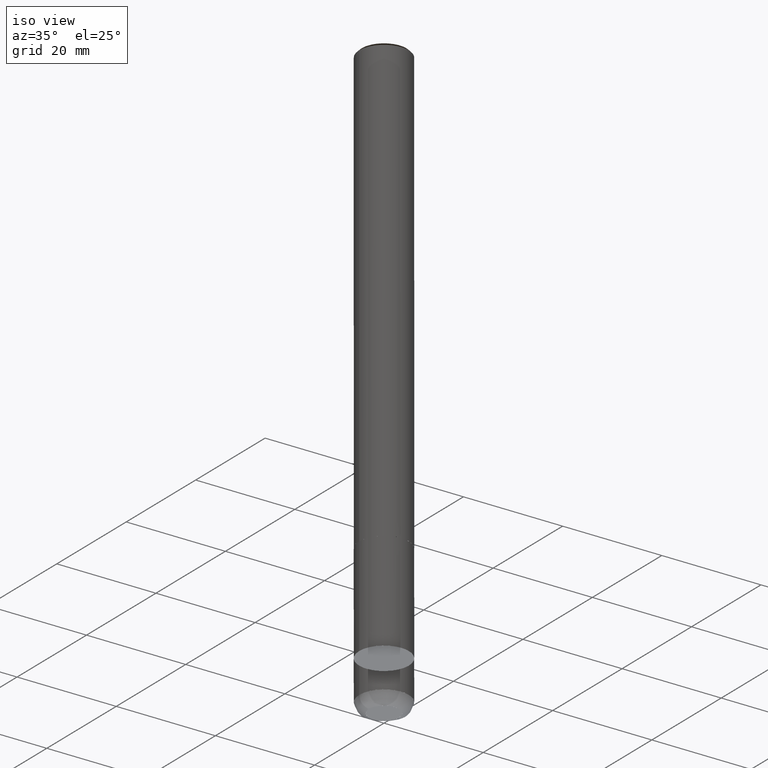
[diagram: clean part render]
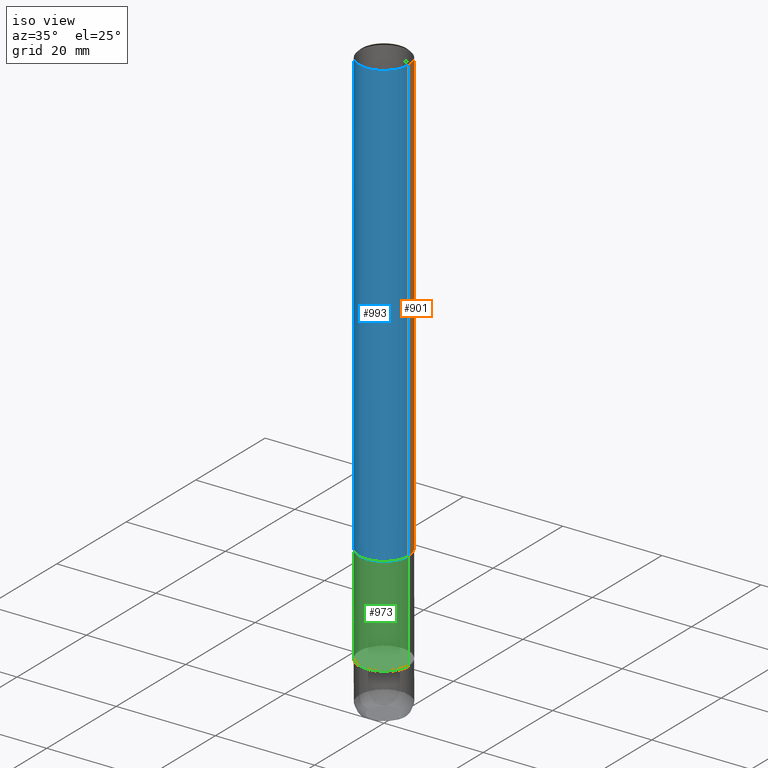
[diagram: same view with three faces highlighted in distinct colors, each labeled with its STEP entity id]
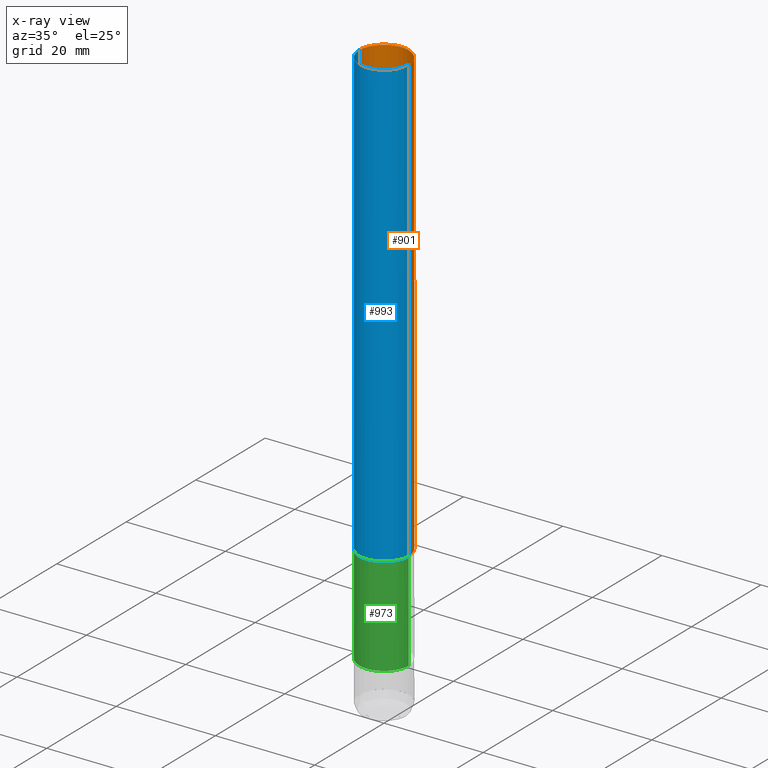
[diagram: x-ray of the same camera — body ghosted, the three highlighted faces saturated]
A machine part, iso view with three faces highlighted in distinct colors.
The next image is the same camera in x-ray (body ghosted, the three faces saturated) — at least one of them is partly hidden behind the body in this view.
Their STEP definitions:

[orange] entity #901 — the highlighted face is a freeform B-spline surface patch.
#666=CARTESIAN_POINT('',(5.0,0.0,0.0));
#667=CARTESIAN_POINT('',(5.0,5.0,0.0));
#668=CARTESIAN_POINT('',(0.0,5.0,0.0));
#669=CARTESIAN_POINT('',(-5.0,5.0,0.0));
#670=CARTESIAN_POINT('',(-5.0,0.0,0.0));
#671=CARTESIAN_POINT('',(5.0,0.0,89.5));
#672=CARTESIAN_POINT('',(5.0,5.0,89.5));
#673=CARTESIAN_POINT('',(0.0,5.0,89.5));
#674=CARTESIAN_POINT('',(-5.0,5.0,89.5));
#675=CARTESIAN_POINT('',(-5.0,0.0,89.5));
#882=(
BOUNDED_SURFACE()
B_SPLINE_SURFACE(1,2,(
(#666,#667,#668,#669,#670),
(#671,#672,#673,#674,#675)
), .UNSPECIFIED.,.F.,.F.,.F.)
B_SPLINE_SURFACE_WITH_KNOTS((2,2),(3,2,3),(
0.0,1.0),(
0.0,0.5,1.0), .UNSPECIFIED.)
GEOMETRIC_REPRESENTATION_ITEM()
RATIONAL_B_SPLINE_SURFACE(((1.0,0.707106781187,1.0,0.707106781187,1.0),
(1.0,0.707106781187,1.0,0.707106781187,1.0)
))
REPRESENTATION_ITEM('')
SURFACE()
);
#883=(
BOUNDED_CURVE()
B_SPLINE_CURVE(2,(#671,#672,#673,#674,#675),.UNSPECIFIED.,.F.,.F.)
B_SPLINE_CURVE_WITH_KNOTS((3,2,3),
(0.0,0.5,1.0),.UNSPECIFIED.)
CURVE()
GEOMETRIC_REPRESENTATION_ITEM()
RATIONAL_B_SPLINE_CURVE((1.0,0.707106781187,1.0,0.707106781187,1.0))
REPRESENTATION_ITEM('')
);
#884=(
BOUNDED_CURVE()
B_SPLINE_CURVE(1,(#675,#670),.UNSPECIFIED.,.F.,.F.)
B_SPLINE_CURVE_WITH_KNOTS((2,2),
(0.0,1.0),.UNSPECIFIED.)
CURVE()
GEOMETRIC_REPRESENTATION_ITEM()
RATIONAL_B_SPLINE_CURVE((1.0,1.0))
REPRESENTATION_ITEM('')
);
#885=(
BOUNDED_CURVE()
B_SPLINE_CURVE(2,(#670,#669,#668,#667,#666),.UNSPECIFIED.,.F.,.F.)
B_SPLINE_CURVE_WITH_KNOTS((3,2,3),
(0.0,0.5,1.0),.UNSPECIFIED.)
CURVE()
GEOMETRIC_REPRESENTATION_ITEM()
RATIONAL_B_SPLINE_CURVE((1.0,0.707106781187,1.0,0.707106781187,1.0))
REPRESENTATION_ITEM('')
);
#886=(
BOUNDED_CURVE()
B_SPLINE_CURVE(1,(#666,#671),.UNSPECIFIED.,.F.,.F.)
B_SPLINE_CURVE_WITH_KNOTS((2,2),
(0.0,1.0),.UNSPECIFIED.)
CURVE()
GEOMETRIC_REPRESENTATION_ITEM()
RATIONAL_B_SPLINE_CURVE((1.0,1.0))
REPRESENTATION_ITEM('')
);
#887=VERTEX_POINT('',#666);
#888=VERTEX_POINT('',#670);
#889=VERTEX_POINT('',#671);
#890=VERTEX_POINT('',#675);
#891=EDGE_CURVE('',#889,#890,#883,.T.);
#892=EDGE_CURVE('',#890,#888,#884,.T.);
#893=EDGE_CURVE('',#888,#887,#885,.T.);
#894=EDGE_CURVE('',#887,#889,#886,.T.);
#895=ORIENTED_EDGE('',*,*,#891,.T.);
#896=ORIENTED_EDGE('',*,*,#892,.T.);
#897=ORIENTED_EDGE('',*,*,#893,.T.);
#898=ORIENTED_EDGE('',*,*,#894,.T.);
#899=EDGE_LOOP('',(#895,#896,#897,#898));
#900=FACE_OUTER_BOUND('',#899,.T.);
#901=ADVANCED_FACE('',(#900),#882,.T.);

[blue] entity #993 — the highlighted face is a freeform B-spline surface patch.
#666=CARTESIAN_POINT('',(5.0,0.0,0.0));
#670=CARTESIAN_POINT('',(-5.0,0.0,0.0));
#671=CARTESIAN_POINT('',(5.0,0.0,89.5));
#675=CARTESIAN_POINT('',(-5.0,0.0,89.5));
#682=CARTESIAN_POINT('',(-5.0,-5.0,0.0));
#683=CARTESIAN_POINT('',(0.0,-5.0,0.0));
#684=CARTESIAN_POINT('',(5.0,-5.0,0.0));
#685=CARTESIAN_POINT('',(-5.0,-5.0,89.5));
#686=CARTESIAN_POINT('',(0.0,-5.0,89.5));
#687=CARTESIAN_POINT('',(5.0,-5.0,89.5));
#974=(
BOUNDED_SURFACE()
B_SPLINE_SURFACE(1,2,(
(#670,#682,#683,#684,#666),
(#675,#685,#686,#687,#671)
), .UNSPECIFIED.,.F.,.F.,.F.)
B_SPLINE_SURFACE_WITH_KNOTS((2,2),(3,2,3),(
0.0,1.0),(
0.0,0.5,1.0), .UNSPECIFIED.)
GEOMETRIC_REPRESENTATION_ITEM()
RATIONAL_B_SPLINE_SURFACE(((1.0,0.707106781187,1.0,0.707106781187,1.0),
(1.0,0.707106781187,1.0,0.707106781187,1.0)
))
REPRESENTATION_ITEM('')
SURFACE()
);
#975=(
BOUNDED_CURVE()
B_SPLINE_CURVE(1,(#675,#670),.UNSPECIFIED.,.F.,.F.)
B_SPLINE_CURVE_WITH_KNOTS((2,2),
(0.0,1.0),.UNSPECIFIED.)
CURVE()
GEOMETRIC_REPRESENTATION_ITEM()
RATIONAL_B_SPLINE_CURVE((1.0,1.0))
REPRESENTATION_ITEM('')
);
#976=(
BOUNDED_CURVE()
B_SPLINE_CURVE(2,(#670,#682,#683,#684,#666),.UNSPECIFIED.,.F.,.F.)
B_SPLINE_CURVE_WITH_KNOTS((3,2,3),
(0.0,0.5,1.0),.UNSPECIFIED.)
CURVE()
GEOMETRIC_REPRESENTATION_ITEM()
RATIONAL_B_SPLINE_CURVE((1.0,0.707106781187,1.0,0.707106781187,1.0))
REPRESENTATION_ITEM('')
);
#977=(
BOUNDED_CURVE()
B_SPLINE_CURVE(1,(#666,#671),.UNSPECIFIED.,.F.,.F.)
B_SPLINE_CURVE_WITH_KNOTS((2,2),
(0.0,1.0),.UNSPECIFIED.)
CURVE()
GEOMETRIC_REPRESENTATION_ITEM()
RATIONAL_B_SPLINE_CURVE((1.0,1.0))
REPRESENTATION_ITEM('')
);
#978=(
BOUNDED_CURVE()
B_SPLINE_CURVE(2,(#671,#687,#686,#685,#675),.UNSPECIFIED.,.F.,.F.)
B_SPLINE_CURVE_WITH_KNOTS((3,2,3),
(0.0,0.5,1.0),.UNSPECIFIED.)
CURVE()
GEOMETRIC_REPRESENTATION_ITEM()
RATIONAL_B_SPLINE_CURVE((1.0,0.707106781187,1.0,0.707106781187,1.0))
REPRESENTATION_ITEM('')
);
#979=VERTEX_POINT('',#666);
#980=VERTEX_POINT('',#670);
#981=VERTEX_POINT('',#671);
#982=VERTEX_POINT('',#675);
#983=EDGE_CURVE('',#982,#980,#975,.T.);
#984=EDGE_CURVE('',#980,#979,#976,.T.);
#985=EDGE_CURVE('',#979,#981,#977,.T.);
#986=EDGE_CURVE('',#981,#982,#978,.T.);
#987=ORIENTED_EDGE('',*,*,#983,.T.);
#988=ORIENTED_EDGE('',*,*,#984,.T.);
#989=ORIENTED_EDGE('',*,*,#985,.T.);
#990=ORIENTED_EDGE('',*,*,#986,.T.);
#991=EDGE_LOOP('',(#987,#988,#989,#990));
#992=FACE_OUTER_BOUND('',#991,.T.);
#993=ADVANCED_FACE('',(#992),#974,.T.);

[green] entity #973 — the highlighted face is a freeform B-spline surface patch.
#648=CARTESIAN_POINT('',(5.0,0.0,-20.0));
#652=CARTESIAN_POINT('',(-5.0,0.0,-20.0));
#663=CARTESIAN_POINT('',(-5.0,-5.0,-20.0));
#664=CARTESIAN_POINT('',(0.0,-5.0,-20.0));
#665=CARTESIAN_POINT('',(5.0,-5.0,-20.0));
#666=CARTESIAN_POINT('',(5.0,0.0,0.0));
#670=CARTESIAN_POINT('',(-5.0,0.0,0.0));
#682=CARTESIAN_POINT('',(-5.0,-5.0,0.0));
#683=CARTESIAN_POINT('',(0.0,-5.0,0.0));
#684=CARTESIAN_POINT('',(5.0,-5.0,0.0));
#954=(
BOUNDED_SURFACE()
B_SPLINE_SURFACE(1,2,(
(#652,#663,#664,#665,#648),
(#670,#682,#683,#684,#666)
), .UNSPECIFIED.,.F.,.F.,.F.)
B_SPLINE_SURFACE_WITH_KNOTS((2,2),(3,2,3),(
0.0,1.0),(
0.0,0.5,1.0), .UNSPECIFIED.)
GEOMETRIC_REPRESENTATION_ITEM()
RATIONAL_B_SPLINE_SURFACE(((1.0,0.707106781187,1.0,0.707106781187,1.0),
(1.0,0.707106781187,1.0,0.707106781187,1.0)
))
REPRESENTATION_ITEM('')
SURFACE()
);
#955=(
BOUNDED_CURVE()
B_SPLINE_CURVE(1,(#670,#652),.UNSPECIFIED.,.F.,.F.)
B_SPLINE_CURVE_WITH_KNOTS((2,2),
(0.0,1.0),.UNSPECIFIED.)
CURVE()
GEOMETRIC_REPRESENTATION_ITEM()
RATIONAL_B_SPLINE_CURVE((1.0,1.0))
REPRESENTATION_ITEM('')
);
#956=(
BOUNDED_CURVE()
B_SPLINE_CURVE(2,(#652,#663,#664,#665,#648),.UNSPECIFIED.,.F.,.F.)
B_SPLINE_CURVE_WITH_KNOTS((3,2,3),
(0.0,0.5,1.0),.UNSPECIFIED.)
CURVE()
GEOMETRIC_REPRESENTATION_ITEM()
RATIONAL_B_SPLINE_CURVE((1.0,0.707106781187,1.0,0.707106781187,1.0))
REPRESENTATION_ITEM('')
);
#957=(
BOUNDED_CURVE()
B_SPLINE_CURVE(1,(#648,#666),.UNSPECIFIED.,.F.,.F.)
B_SPLINE_CURVE_WITH_KNOTS((2,2),
(0.0,1.0),.UNSPECIFIED.)
CURVE()
GEOMETRIC_REPRESENTATION_ITEM()
RATIONAL_B_SPLINE_CURVE((1.0,1.0))
REPRESENTATION_ITEM('')
);
#958=(
BOUNDED_CURVE()
B_SPLINE_CURVE(2,(#666,#684,#683,#682,#670),.UNSPECIFIED.,.F.,.F.)
B_SPLINE_CURVE_WITH_KNOTS((3,2,3),
(0.0,0.5,1.0),.UNSPECIFIED.)
CURVE()
GEOMETRIC_REPRESENTATION_ITEM()
RATIONAL_B_SPLINE_CURVE((1.0,0.707106781187,1.0,0.707106781187,1.0))
REPRESENTATION_ITEM('')
);
#959=VERTEX_POINT('',#648);
#960=VERTEX_POINT('',#652);
#961=VERTEX_POINT('',#666);
#962=VERTEX_POINT('',#670);
#963=EDGE_CURVE('',#962,#960,#955,.T.);
#964=EDGE_CURVE('',#960,#959,#956,.T.);
#965=EDGE_CURVE('',#959,#961,#957,.T.);
#966=EDGE_CURVE('',#961,#962,#958,.T.);
#967=ORIENTED_EDGE('',*,*,#963,.T.);
#968=ORIENTED_EDGE('',*,*,#964,.T.);
#969=ORIENTED_EDGE('',*,*,#965,.T.);
#970=ORIENTED_EDGE('',*,*,#966,.T.);
#971=EDGE_LOOP('',(#967,#968,#969,#970));
#972=FACE_OUTER_BOUND('',#971,.T.);
#973=ADVANCED_FACE('',(#972),#954,.T.);